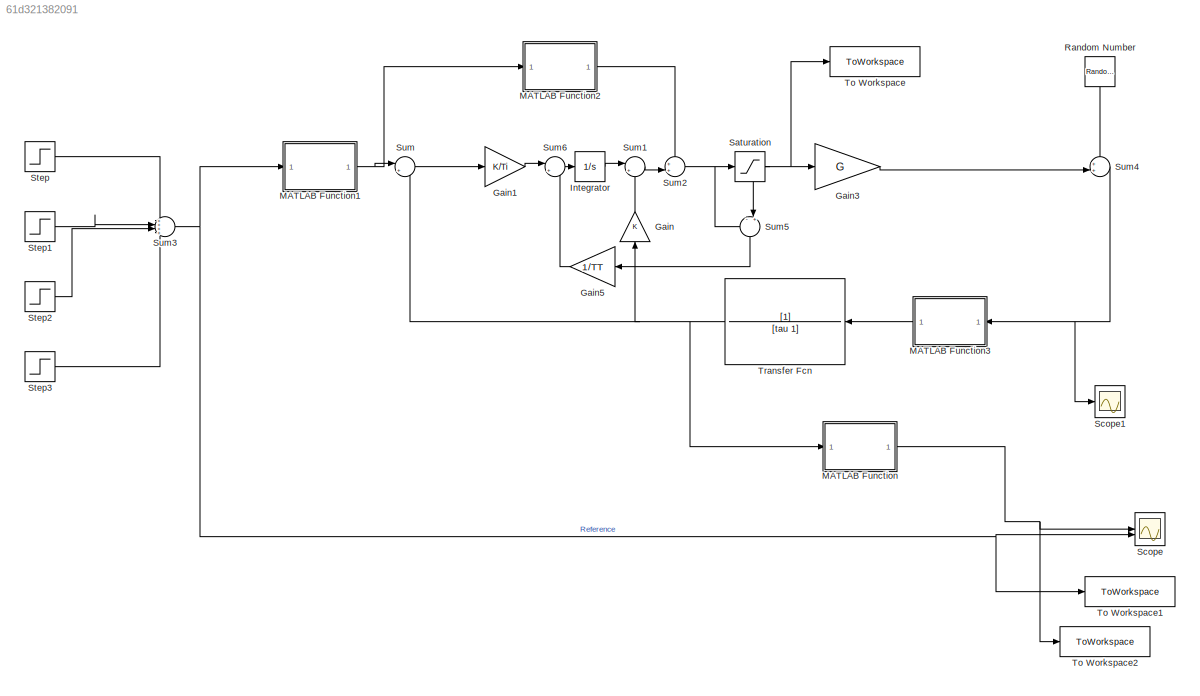
MODEL slx_61d321382091
KIND model
CONFIG AbsTol = auto
CONFIG EnableMultiTasking = off
CONFIG FixedStep = auto
CONFIG MaxStep = auto
CONFIG MinStep = auto
CONFIG RelTol = 1e-3
CONFIG SampleTimeConstraint = Unconstrained
CONFIG SolverName = VariableStepAuto
CONFIG StartTime = 0.0
CONFIG StopTime = 30
BLOCK [Gain] Gain
  Gain = K
  NameLocation = right
BLOCK [Gain] Gain1
  Gain = K/Ti
BLOCK [Gain] Gain3
  Gain = G
BLOCK [Gain] Gain5
  Gain = 1/TT
  NameLocation = top
BLOCK [Integrator] Integrator
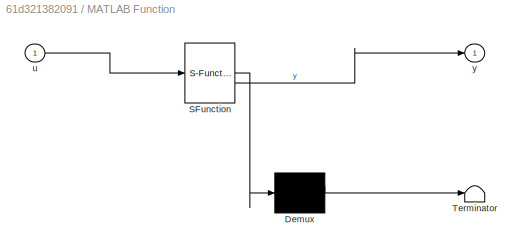
BLOCK [SubSystem] MATLAB Function
  ErrorFcn = Stateflow.Translate.translate
  PermitHierarchicalResolution = ExplicitOnly
  SFBlockType = MATLAB Function
  TreatAsAtomicUnit = on
BLOCK [Demux] MATLAB Function/ Demux 
  Outputs = 1
BLOCK [S-Function] MATLAB Function/ SFunction 
  EnableBusSupport = on
  FunctionName = sf_sfun
  PortCounts = [1 2]
  SFcnIsStateOwnerBlock = off
  SFunctionDeploymentMode = off
  Tag = Stateflow S-Function 4
BLOCK [Terminator] MATLAB Function/ Terminator 
BLOCK [Inport] MATLAB Function/u
BLOCK [Outport] MATLAB Function/y
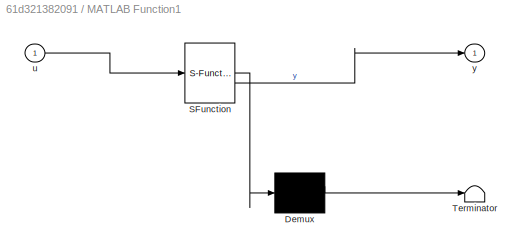
BLOCK [SubSystem] MATLAB Function1
  ErrorFcn = Stateflow.Translate.translate
  PermitHierarchicalResolution = ExplicitOnly
  SFBlockType = MATLAB Function
  TreatAsAtomicUnit = on
BLOCK [Demux] MATLAB Function1/ Demux 
  Outputs = 1
BLOCK [S-Function] MATLAB Function1/ SFunction 
  EnableBusSupport = on
  FunctionName = sf_sfun
  PortCounts = [1 2]
  SFcnIsStateOwnerBlock = off
  SFunctionDeploymentMode = off
  Tag = Stateflow S-Function 1
BLOCK [Terminator] MATLAB Function1/ Terminator 
BLOCK [Inport] MATLAB Function1/u
BLOCK [Outport] MATLAB Function1/y
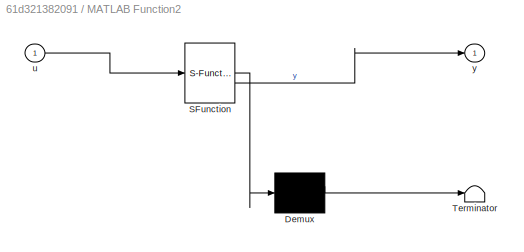
BLOCK [SubSystem] MATLAB Function2
  ErrorFcn = Stateflow.Translate.translate
  PermitHierarchicalResolution = ExplicitOnly
  SFBlockType = MATLAB Function
  TreatAsAtomicUnit = on
BLOCK [Demux] MATLAB Function2/ Demux 
  Outputs = 1
BLOCK [S-Function] MATLAB Function2/ SFunction 
  EnableBusSupport = on
  FunctionName = sf_sfun
  PortCounts = [1 2]
  SFcnIsStateOwnerBlock = off
  SFunctionDeploymentMode = off
  Tag = Stateflow S-Function 2
BLOCK [Terminator] MATLAB Function2/ Terminator 
BLOCK [Inport] MATLAB Function2/u
BLOCK [Outport] MATLAB Function2/y
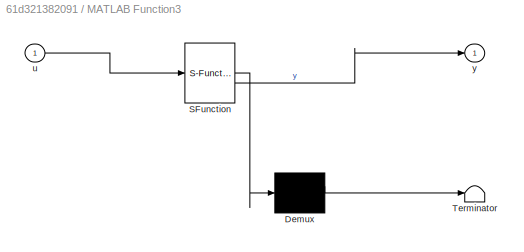
BLOCK [SubSystem] MATLAB Function3
  ErrorFcn = Stateflow.Translate.translate
  NameLocation = top
  PermitHierarchicalResolution = ExplicitOnly
  SFBlockType = MATLAB Function
  TreatAsAtomicUnit = on
BLOCK [Demux] MATLAB Function3/ Demux 
  Outputs = 1
BLOCK [S-Function] MATLAB Function3/ SFunction 
  EnableBusSupport = on
  FunctionName = sf_sfun
  PortCounts = [1 2]
  SFcnIsStateOwnerBlock = off
  SFunctionDeploymentMode = off
  Tag = Stateflow S-Function 3
BLOCK [Terminator] MATLAB Function3/ Terminator 
BLOCK [Inport] MATLAB Function3/u
BLOCK [Outport] MATLAB Function3/y
BLOCK [RandomNumber] Random Number
  Mean = 0.28
  NameLocation = left
  SampleTime = 0.1
  Variance = 0.001
BLOCK [Saturate] Saturation
  LowerLimit = 0
  UpperLimit = 1
BLOCK [Scope] Scope
  Floating = off
  NumInputPorts = 2
  ScopeSpecificationString = Simulink.scopes.TimeScopeBlockCfg('CurrentConfiguration', extmgr.ConfigurationSet(extmgr.Configuration('Core','General UI',true),extmgr.Configuration('Core','Source UI',true),extmgr.Configuration('Sources','WiredSimulink',true),extmgr.Configuration('Visuals','Time Domain',true,'SerializedDisplays',{struct('MinYLimReal','-3.13267','MaxYLimReal','28.19399','YLabelReal','LUX','MinYLimMag','0.00000','...<+1468ch>
BLOCK [Scope] Scope1
  Floating = off
  NumInputPorts = 1
  ScopeSpecificationString = Simulink.scopes.TimeScopeBlockCfg('CurrentConfiguration', extmgr.ConfigurationSet(extmgr.Configuration('Core','General UI',true),extmgr.Configuration('Core','Source UI',true),extmgr.Configuration('Sources','WiredSimulink',true,'DataLoggingVariableName','ScopeData1'),extmgr.Configuration('Visuals','Time Domain',true,'SerializedDisplays',{struct('MinYLimReal','-2.90992','MaxYLimReal','28.21634','YLa...<+1396ch>
BLOCK [Step] Step
  After = 10
  SampleTime = 0
  Time = 5
BLOCK [Step] Step1
  After = 15
  SampleTime = 0
  Time = 11
BLOCK [Step] Step2
  After = -20
  SampleTime = 0
  Time = 18
BLOCK [Step] Step3
  After = 20
  SampleTime = 0
  Time = 22
BLOCK [Sum] Sum
  Inputs = |+-
BLOCK [Sum] Sum1
  Inputs = |+-
BLOCK [Sum] Sum2
  Inputs = ++|
BLOCK [Sum] Sum3
  Inputs = ++++
BLOCK [Sum] Sum4
  Inputs = ++|
BLOCK [Sum] Sum5
  Inputs = -|+
  NameLocation = left
BLOCK [Sum] Sum6
  Inputs = |++
BLOCK [ToWorkspace] To Workspace
  FixptAsFi = on
  MaxDataPoints = inf
  SampleTime = -1
  SaveFormat = Timeseries
  VariableName = dc
BLOCK [ToWorkspace] To Workspace1
  FixptAsFi = on
  MaxDataPoints = inf
  SampleTime = -1
  SaveFormat = Timeseries
  VariableName = ref
BLOCK [ToWorkspace] To Workspace2
  FixptAsFi = on
  MaxDataPoints = inf
  SampleTime = -1
  SaveFormat = Timeseries
  VariableName = LUX
BLOCK [TransferFcn] Transfer Fcn
  Denominator = [tau 1]
  NameLocation = top
LINE Gain1:1 -> Sum6:1
LINE Gain3:1 -> Sum4:2
LINE Gain5:1 -> Sum6:2
LINE Gain:1 -> Sum1:2
LINE Integrator:1 -> Sum1:1
NET MATLAB Function1:1 -> MATLAB Function2:1, Sum:1
LINE MATLAB Function2:1 -> Sum2:1
LINE MATLAB Function3:1 -> Transfer Fcn:1
NET MATLAB Function:1 -> Scope:1, To Workspace2:1
LINE Random Number:1 -> Sum4:1
NET Saturation:1 -> Gain3:1, Sum5:2, To Workspace:1
LINE Step1:1 -> Sum3:2
LINE Step2:1 -> Sum3:3
LINE Step3:1 -> Sum3:4
LINE Step:1 -> Sum3:1
LINE Sum1:1 -> Sum2:2
NET Sum2:1 -> Saturation:1, Sum5:1
NET Sum3:1 -> MATLAB Function1:1, Scope:2, To Workspace1:1
NET Sum4:1 -> MATLAB Function3:1, Scope1:1
LINE Sum5:1 -> Gain5:1
LINE Sum6:1 -> Integrator:1
LINE Sum:1 -> Gain1:1
NET Transfer Fcn:1 -> Gain:1, MATLAB Function:1, Sum:2
note: NET lines group one-source signal fan-out (src -> all destinations, sorted); 1:1 wires keep LINE
CHART MATLAB Function2 states=1 transitions=1
  STATE_LABEL 'eML_blk_kernel()'
  STATE_LABEL 'SCRIPT:\nfunction y = fcn(u)\n%% Calcular H\n\n%Volt to lux\nif u~=0\nG = 32.772667;\nm = -0.89;\nR1 = 10000.0;\nVCC = 3.3;\noffset_R_Lux = log10(225000) - m;\nLDR_resistance = (VCC * R1) / u - R1;\nlux = 10^((log10(LDR_resistance) - offset_R_Lux)/m);\nH = u/lux;\n%% Calcular b*K\ny = u/(H*G);\nelse\n    y = 0;\nend'
CHART MATLAB Function3 states=1 transitions=1
  STATE_LABEL 'eML_blk_kernel()'
  STATE_LABEL 'SCRIPT:\nfunction y = fcn(u)\nm = -0.89;\nR1 = 10000.0;\nVCC = 3.3;\noffset_R_Lux = log10(225000) - m;\nresistance = 10^(m * log10(u) + offset_R_Lux);\ny = (VCC * R1) / (resistance + R1);'
CHART MATLAB Function states=1 transitions=1
  STATE_LABEL 'eML_blk_kernel()'
  STATE_LABEL 'SCRIPT:\n%Volt to lux\n\nfunction y = fcn(u)\nm = -0.89;\nR1 = 10000.0;\nVCC = 3.3;\noffset_R_Lux = log10(225000) - m;\nLDR_resistance = (VCC * R1) / u - R1;\ny = 10^((log10(LDR_resistance) - offset_R_Lux)/m);'
CHART MATLAB Function1 states=1 transitions=1
  STATE_LABEL 'eML_blk_kernel()'
  STATE_LABEL 'SCRIPT:\nfunction y = fcn(u)\nm = -0.89;\nR1 = 10000.0;\nVCC = 3.3;\noffset_R_Lux = log10(225000) - m;\nresistance = 10^(m * log10(u) + offset_R_Lux);\ny = (VCC * R1) / (resistance + R1);'
CHART  states=0 transitions=0
CHART  states=0 transitions=0
CHART  states=0 transitions=0
CHART  states=0 transitions=0
